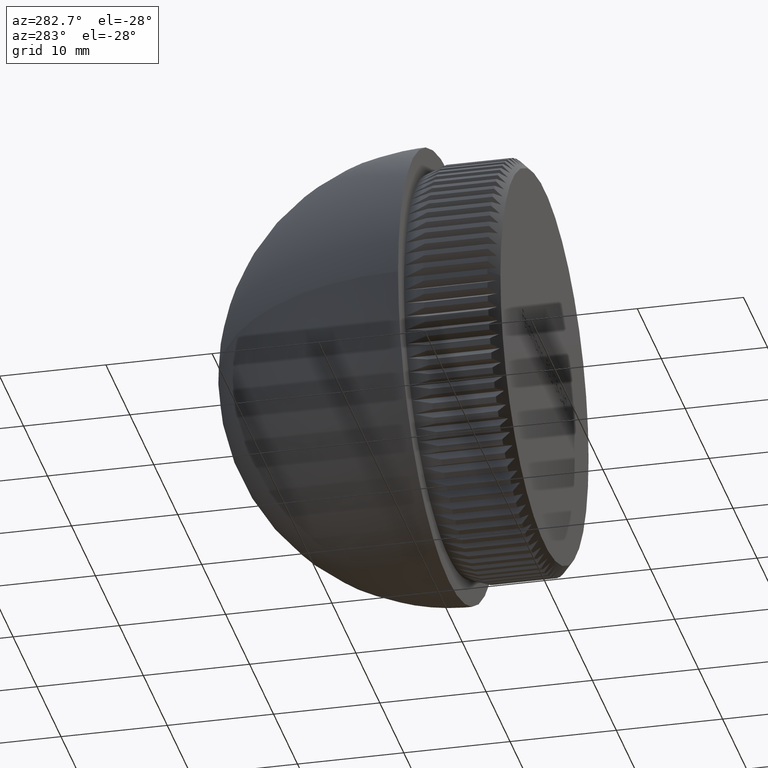
[diagram: clean part render]
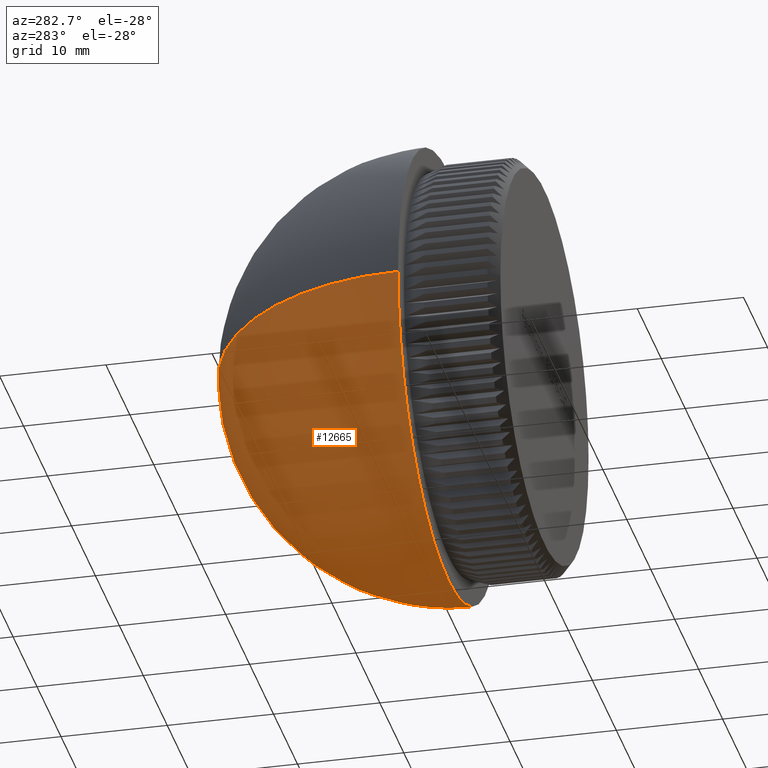
[diagram: same view with one face highlighted and labeled with its STEP entity id]
A machine part, auxiliary view. The second image highlights one B-rep face of the part: STEP entity #12665.
In plain terms, the highlighted spherical surface has radius 21.2 mm.
Its self-contained STEP definition (entity closure, byte-faithful):
#226 = EDGE_CURVE ( 'NONE', #10403, #14787, #7999, .T. ) ;
#790 = DIRECTION ( 'NONE',  ( 0.0000000000000000000, -0.0000000000000000000, 1.000000000000000000 ) ) ;
#1172 = CARTESIAN_POINT ( 'NONE',  ( 1.298125607094238800E-015, 30.19999999999999900, 0.0000000000000000000 ) ) ;
#2666 = AXIS2_PLACEMENT_3D ( 'NONE', #7658, #12939, #20274 ) ;
#3003 = EDGE_LOOP ( 'NONE', ( #14757, #10267, #17902 ) ) ;
#6280 = CARTESIAN_POINT ( 'NONE',  ( -21.20000000000000300, 8.999999999999998200, 2.596251214192388800E-015 ) ) ;
#6615 = VERTEX_POINT ( 'NONE', #6280 ) ;
#7246 = EDGE_CURVE ( 'NONE', #6615, #14787, #15431, .T. ) ;
#7658 = CARTESIAN_POINT ( 'NONE',  ( -3.424513085742286300E-028, 8.999999999999998200, 0.0000000000000000000 ) ) ;
#7999 = CIRCLE ( 'NONE', #10503, 21.20000000000000300 ) ;
#8632 = CARTESIAN_POINT ( 'NONE',  ( -1.149114390993522900E-027, 8.999999999999996400, 0.0000000000000000000 ) ) ;
#9797 = CARTESIAN_POINT ( 'NONE',  ( -1.149114390993522900E-027, 8.999999999999996400, 0.0000000000000000000 ) ) ;
#10267 = ORIENTED_EDGE ( 'NONE', *, *, #226, .T. ) ;
#10403 = VERTEX_POINT ( 'NONE', #1172 ) ;
#10503 = AXIS2_PLACEMENT_3D ( 'NONE', #10994, #14446, #16493 ) ;
#10994 = CARTESIAN_POINT ( 'NONE',  ( -1.149114390993522900E-027, 8.999999999999996400, 0.0000000000000000000 ) ) ;
#12665 = ADVANCED_FACE ( 'NONE', ( #22278 ), #19209, .T. ) ;
#12939 = DIRECTION ( 'NONE',  ( 3.805014539713652200E-029, -1.000000000000000000, -0.0000000000000000000 ) ) ;
#13028 = AXIS2_PLACEMENT_3D ( 'NONE', #8632, #23113, #21234 ) ;
#14446 = DIRECTION ( 'NONE',  ( 0.0000000000000000000, 0.0000000000000000000, -1.000000000000000000 ) ) ;
#14636 = AXIS2_PLACEMENT_3D ( 'NONE', #9797, #790, #15004 ) ;
#14757 = ORIENTED_EDGE ( 'NONE', *, *, #18448, .F. ) ;
#14785 = CIRCLE ( 'NONE', #13028, 21.20000000000000300 ) ;
#14787 = VERTEX_POINT ( 'NONE', #15116 ) ;
#15004 = DIRECTION ( 'NONE',  ( 1.000000000000000000, 0.0000000000000000000, 0.0000000000000000000 ) ) ;
#15116 = CARTESIAN_POINT ( 'NONE',  ( 21.20000000000000300, 8.999999999999998200, 0.0000000000000000000 ) ) ;
#15431 = CIRCLE ( 'NONE', #2666, 21.20000000000000300 ) ;
#16493 = DIRECTION ( 'NONE',  ( -1.000000000000000000, 0.0000000000000000000, 0.0000000000000000000 ) ) ;
#17902 = ORIENTED_EDGE ( 'NONE', *, *, #7246, .F. ) ;
#18448 = EDGE_CURVE ( 'NONE', #10403, #6615, #14785, .T. ) ;
#19209 = SPHERICAL_SURFACE ( 'NONE', #14636, 21.20000000000000300 ) ;
#20274 = DIRECTION ( 'NONE',  ( 1.000000000000000000, 0.0000000000000000000, 0.0000000000000000000 ) ) ;
#21234 = DIRECTION ( 'NONE',  ( 1.000000000000000000, 0.0000000000000000000, -1.224646799147353200E-016 ) ) ;
#22278 = FACE_OUTER_BOUND ( 'NONE', #3003, .T. ) ;
#23113 = DIRECTION ( 'NONE',  ( 1.224646799147353200E-016, 4.659798876769463300E-045, 1.000000000000000000 ) ) ;